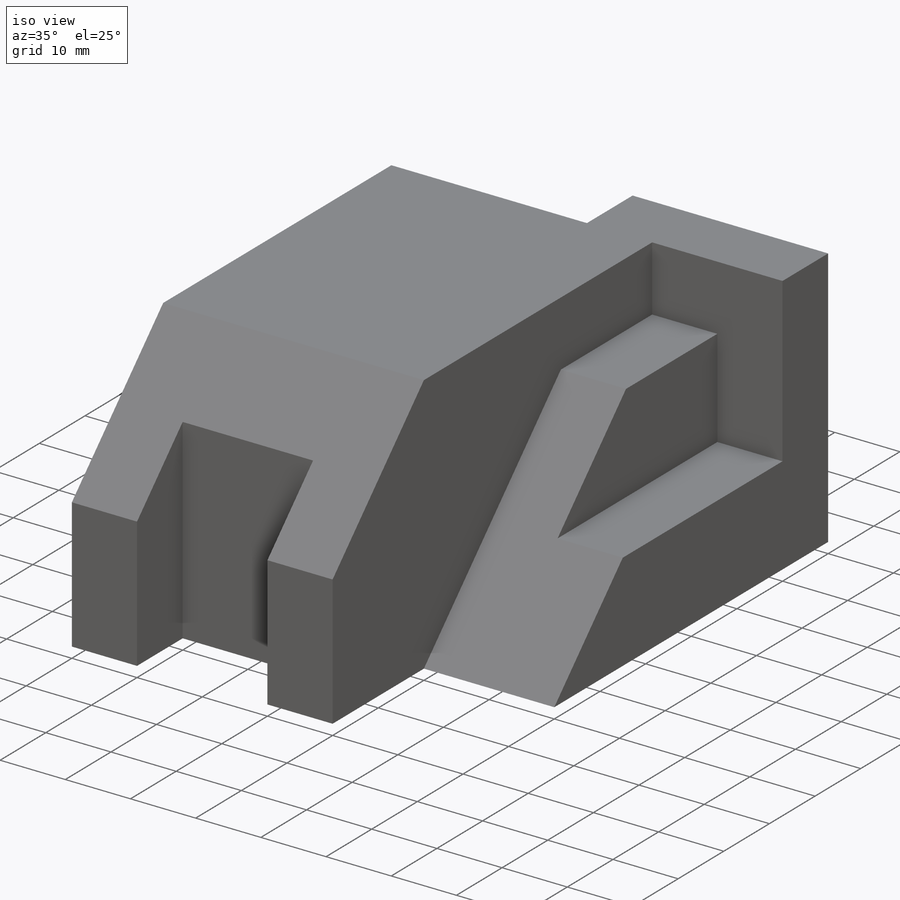
[diagram: iso view]
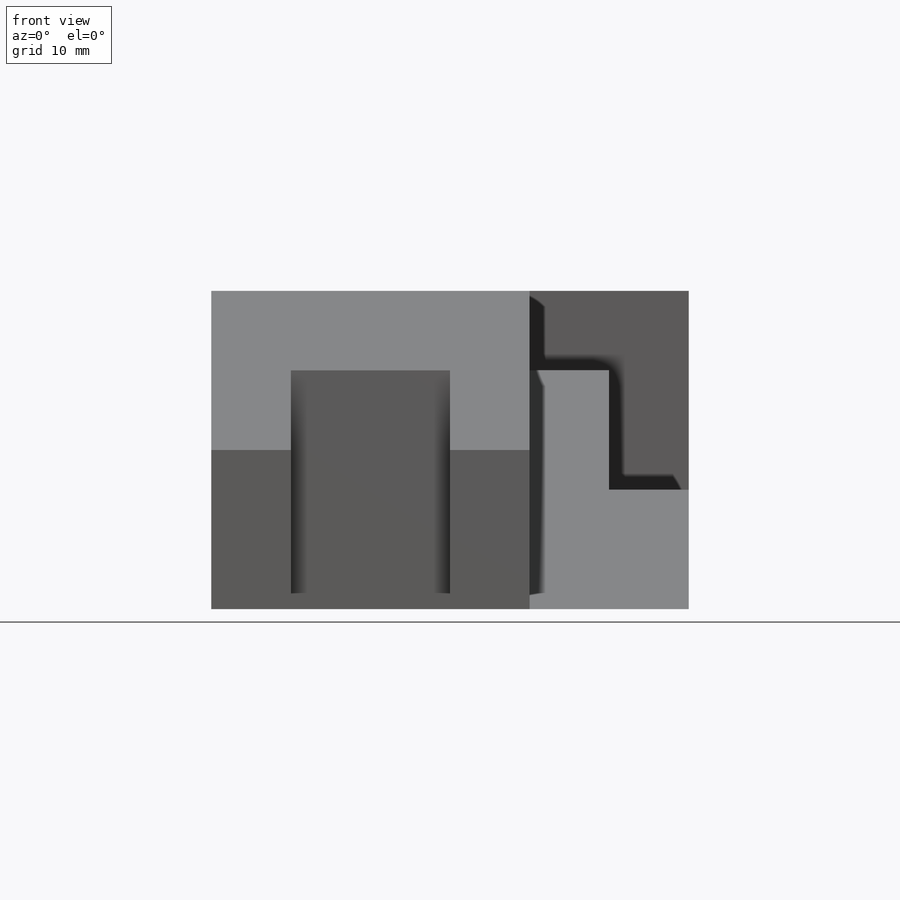
[diagram: front view]
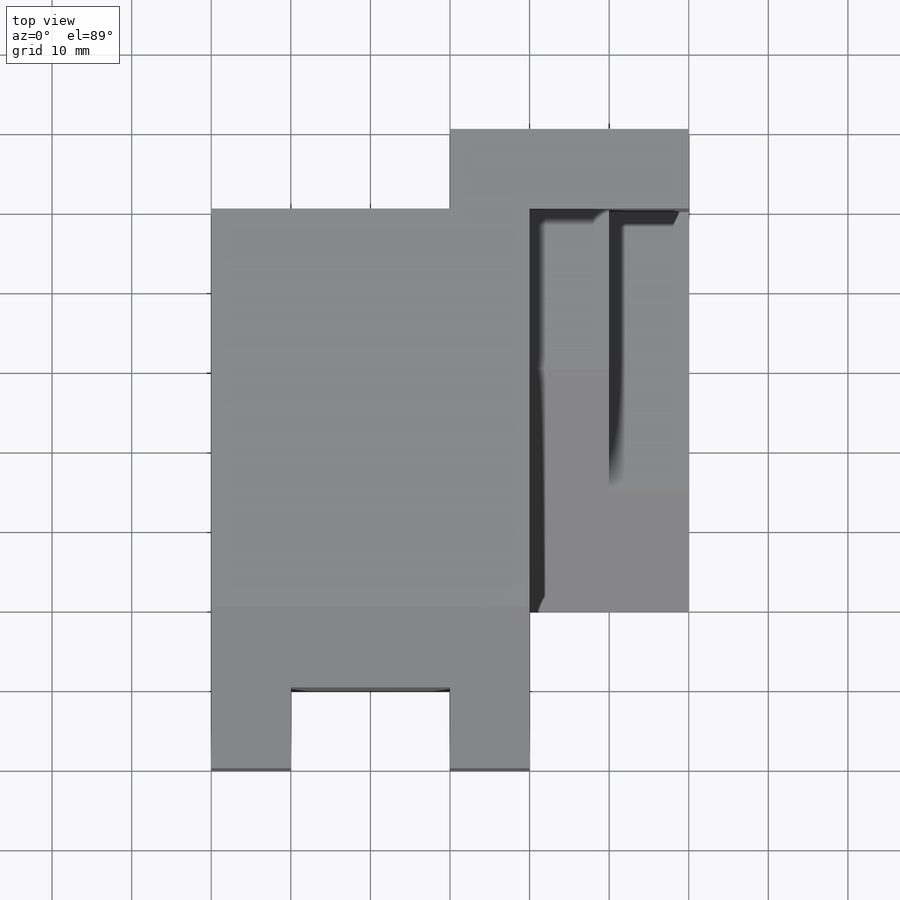
[diagram: top view]
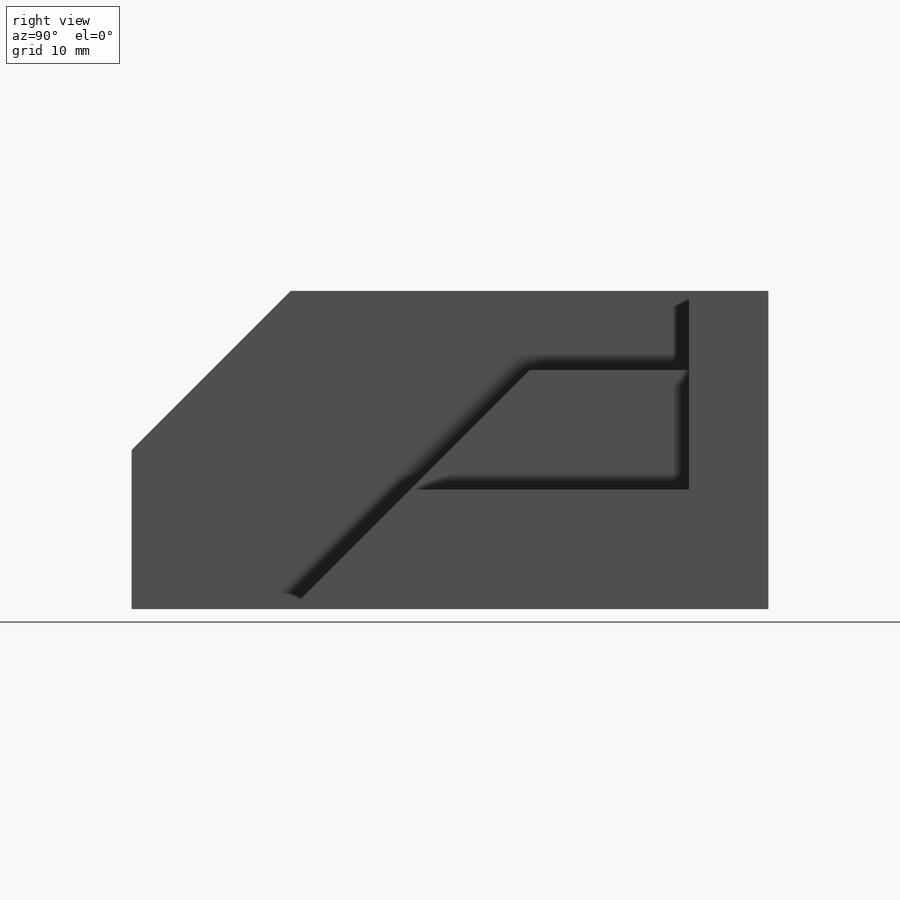
[diagram: right view]
SOLIDWORKS PART (.sldprt)
format: sldprt  version: not decoded by parser v0  size: 194,560 bytes
history: native  units: mm
features: sketch x3, cut_extrude x2, material x1, extrude x1, chamfer x1 (+13 scaffold rows collapsed)
feature tree (21):
  scaffold x13  (default folders/planes/origin — collapsed)
  material  "Material <not specified>"
  sketch  "Sketch1"  dims[D1=70.0mm D2=30.0mm D3=30.0mm D4=70.0mm D5=20.0mm D6=10.0mm D7=10.0mm D8=10.0mm D9=10.0mm D10=10.0mm D11=~20.631808mm]
  extrude  "Boss-Extrude1"  Depth=40mm
  chamfer  "Chamfer1"  Distance=20mm
  sketch  "Sketch2"  dims[c1.D1=20.0mm c1.D2=10.0mm c1.D3=~25.422242mm c1.D4=~38.865971mm c2.D3=~25.422242mm c2.D4=~29.398526mm c2.D1=30.0mm c3.D3=30.0mm c3.D4=10.0mm c3.D5=40.0mm]
  cut_extrude  "Cut-Extrude1"  Depth=20mm
  sketch  "Sketch3"  dims[D1=15.0mm D2=10.0mm]
  cut_extrude  "Cut-Extrude2"  Depth=70mm
decode coverage: 7 of 7 modeling features carry decoded parameters
note: ~ marks probable driven/reference dimensions
note: suppression state not decoded; provenance and decode notes live in map.json
